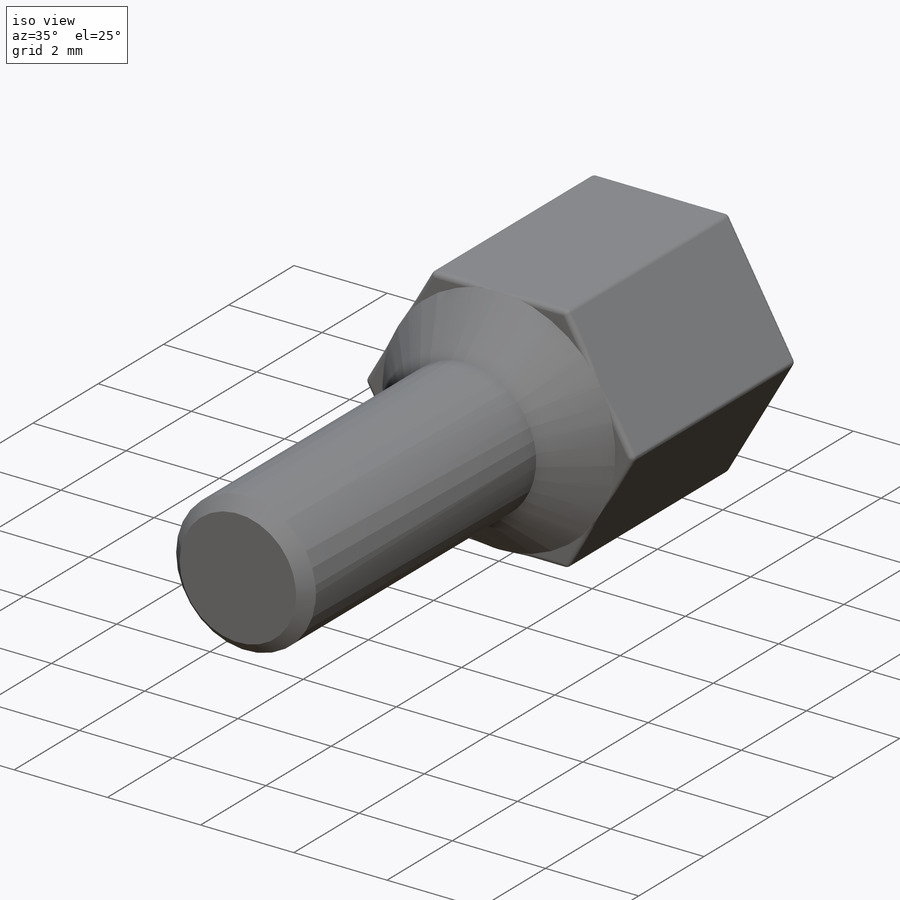
[diagram: iso view]
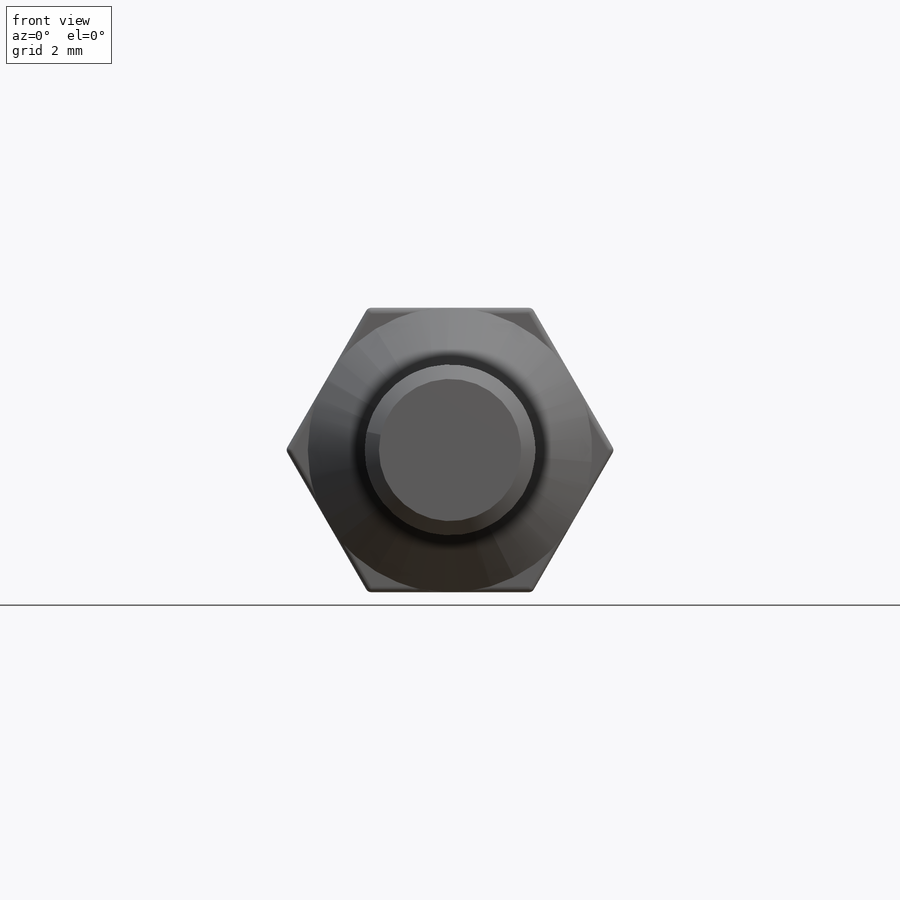
[diagram: front view]
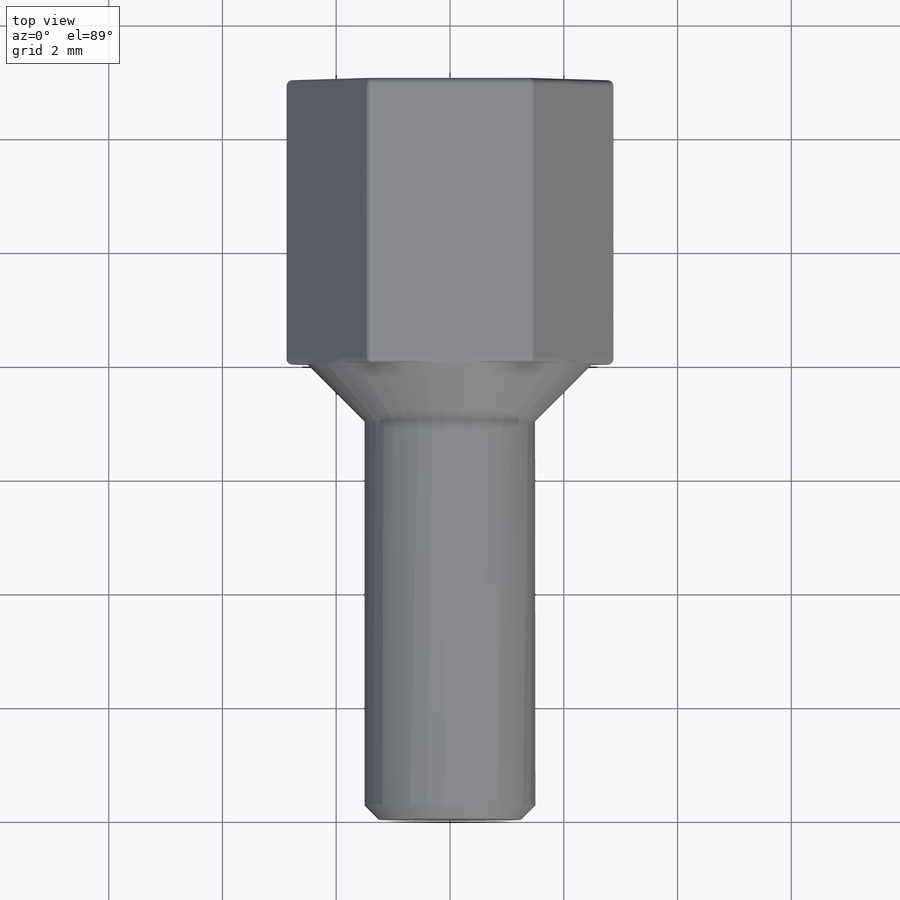
[diagram: top view]
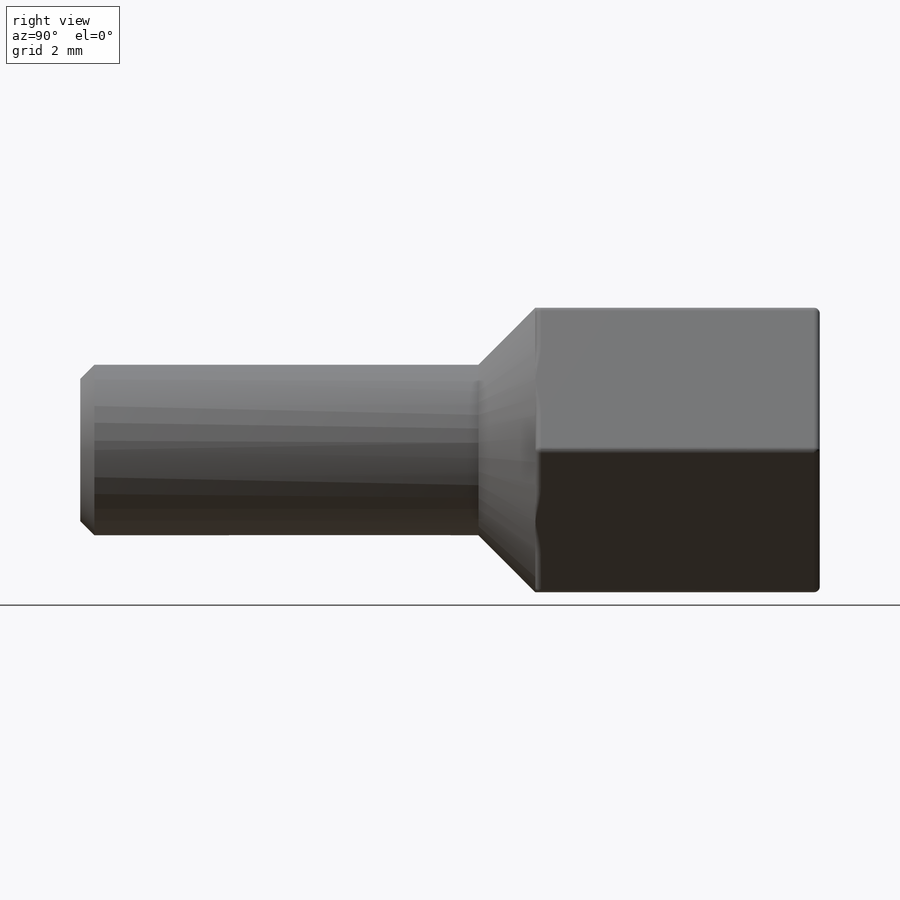
[diagram: right view]
SOLIDWORKS PART (.sldprt)
format: sldprt  version: not decoded by parser v0  size: 791,552 bytes
history: native  units: mm
features: sketch x5, plane x4, extrude x3, thread x2, material x1, hole x1, chamfer x1, fillet x1 (+9 scaffold rows collapsed)
feature tree (27):
  scaffold x9  (default folders/planes/origin — collapsed)
  material  "Латунь"
  plane  "Спереди"
  plane  "Сверху"
  plane  "Справа"
  sketch  "Эскиз1"  dims[H1=5.5mm D1=3.0mm]
  extrude  "Бобышка-Вытянуть1"  [1 undecoded]
  thread  "Условное изображение резьбы1"  Diameter=2.5mm P1=8mm  [1 undecoded]
  plane  "Плоскость1"  Offset=1mm A1=1mm
  sketch  "Эскиз2"
  extrude  "Бобышка-Вытянуть2"  A2=45deg  [1 undecoded]
  sketch  "Эскиз3"  dims[H1=5.0mm]
  extrude  "Бобышка-Вытянуть3"  Depth=5mm L1=5mm
  hole  "Сверление под метчик M3x0.51"  [1 undecoded]
  sketch  "Эскиз4"
  sketch  "Эскиз5"  dims[hole-wizard template sketch: 46 standard entries collapsed; hole parameters kept: c15.D1=12.7mm c15.P3=4.3mm c15.D3=~14.816244mm c15.Угол заточки сверла=118.0deg]
  thread  "Условное изображение резьбы2"  Diameter=3mm P2=3mm  [1 undecoded]
  chamfer  "Фаска1"  Distance=0.25mm Angle=45deg F1=0.25mm F2=45deg
  fillet  "Скругление1"  Radius=0.1mm
decode coverage: 9 of 13 modeling features carry decoded parameters
note: ~ marks probable driven/reference dimensions
note: 5 parameter values undecoded
summary: no parameter record found for 3 features
note: suppression state not decoded; provenance and decode notes live in map.json
